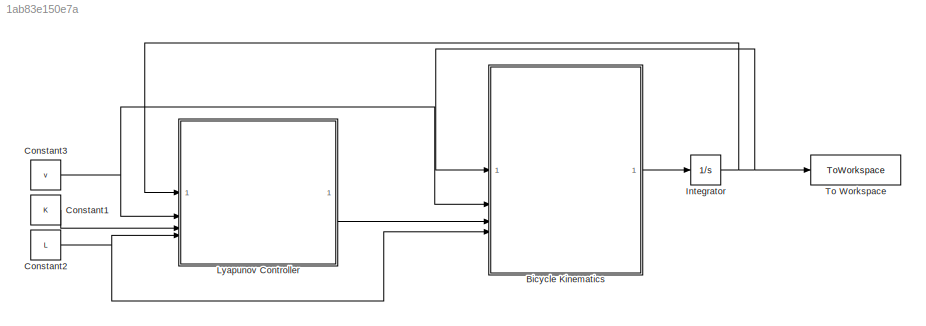
MODEL slx_1ab83e150e7a
KIND model
CONFIG AbsTol = auto
CONFIG EnableMultiTasking = off
CONFIG FixedStep = auto
CONFIG MaxStep = 0.001
CONFIG MinStep = auto
CONFIG RelTol = 1e-5
CONFIG SampleTimeConstraint = Unconstrained
CONFIG SolverName = VariableStepAuto
CONFIG StartTime = 0.0
CONFIG StopTime = 30
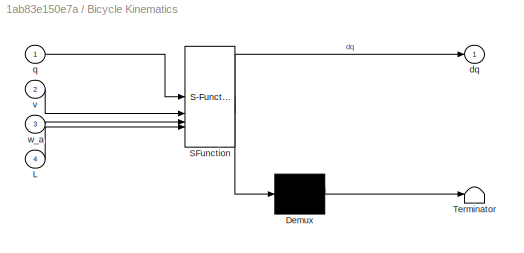
BLOCK [SubSystem] Bicycle Kinematics
  ErrorFcn = Stateflow.Translate.translate
  PermitHierarchicalResolution = ExplicitOnly
  SFBlockType = MATLAB Function
  TreatAsAtomicUnit = on
BLOCK [Demux] Bicycle Kinematics/ Demux 
  Outputs = 1
BLOCK [S-Function] Bicycle Kinematics/ SFunction 
  EnableBusSupport = on
  FunctionName = sf_sfun
  PortCounts = [4 2]
  SFcnIsStateOwnerBlock = off
  SFunctionDeploymentMode = off
  Tag = Stateflow S-Function 2
BLOCK [Terminator] Bicycle Kinematics/ Terminator 
BLOCK [Inport] Bicycle Kinematics/L
  Port = 4
BLOCK [Outport] Bicycle Kinematics/dq
BLOCK [Inport] Bicycle Kinematics/q
BLOCK [Inport] Bicycle Kinematics/v
  Port = 2
BLOCK [Inport] Bicycle Kinematics/w_a
  Port = 3
BLOCK [Constant] Constant1
  Value = K
BLOCK [Constant] Constant2
  Value = L
BLOCK [Constant] Constant3
  Value = v
BLOCK [Integrator] Integrator
  InitialCondition = q0
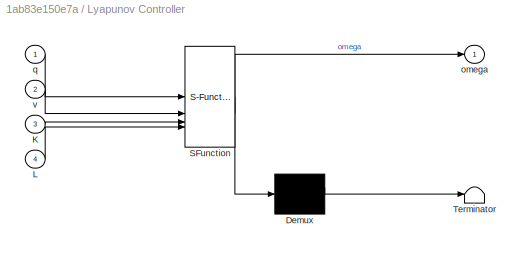
BLOCK [SubSystem] Lyapunov Controller
  ErrorFcn = Stateflow.Translate.translate
  PermitHierarchicalResolution = ExplicitOnly
  SFBlockType = MATLAB Function
  TreatAsAtomicUnit = on
BLOCK [Demux] Lyapunov Controller/ Demux 
  Outputs = 1
BLOCK [S-Function] Lyapunov Controller/ SFunction 
  EnableBusSupport = on
  FunctionName = sf_sfun
  PortCounts = [4 2]
  SFcnIsStateOwnerBlock = off
  SFunctionDeploymentMode = off
  Tag = Stateflow S-Function 1
BLOCK [Terminator] Lyapunov Controller/ Terminator 
BLOCK [Inport] Lyapunov Controller/K
  Port = 3
BLOCK [Inport] Lyapunov Controller/L
  Port = 4
BLOCK [Outport] Lyapunov Controller/omega
BLOCK [Inport] Lyapunov Controller/q
BLOCK [Inport] Lyapunov Controller/v
  Port = 2
BLOCK [ToWorkspace] To Workspace
  FixptAsFi = on
  MaxDataPoints = inf
  SampleTime = -1
  SaveFormat = Timeseries
  VariableName = q_out
LINE Bicycle Kinematics:1 -> Integrator:1
LINE Constant1:1 -> Lyapunov Controller:3
NET Constant2:1 -> Bicycle Kinematics:4, Lyapunov Controller:4
NET Constant3:1 -> Bicycle Kinematics:2, Lyapunov Controller:2
NET Integrator:1 -> Bicycle Kinematics:1, Lyapunov Controller:1, To Workspace:1
LINE Lyapunov Controller:1 -> Bicycle Kinematics:3
note: NET lines group one-source signal fan-out (src -> all destinations, sorted); 1:1 wires keep LINE
CHART Lyapunov Controller states=1 transitions=1
  STATE_LABEL 'eML_blk_kernel()'
  STATE_LABEL 'SCRIPT:\nfunction omega  = fcn(q, v, K, L)\n\nx = q(1);\ny = q(2);\ntheta_a = q(3);\ntheta_p = q(4);\n\n% control\nomega = -y * v * sin(theta_a) / theta_a - K * theta_a;\n\n\n'
CHART Bicycle Kinematics states=1 transitions=1
  STATE_LABEL 'eML_blk_kernel()'
  STATE_LABEL 'SCRIPT:\nfunction dq = fcn(q, v, w_a, L)\n\nx_a = q(1); \ny_a = q(2); \nth_a = q(3);\nth_p = q(4);\n\n% Kinematics\ndx_a = v * cos(th_a);\ndy_a = v * sin(th_a);\ndth_a = w_a;\ndth_p = v * sin(th_a - th_p) / L;\n\ndq = [dx_a ; dy_a ; dth_a; dth_p];\n\n'
CHART  states=0 transitions=0
CHART  states=0 transitions=0
